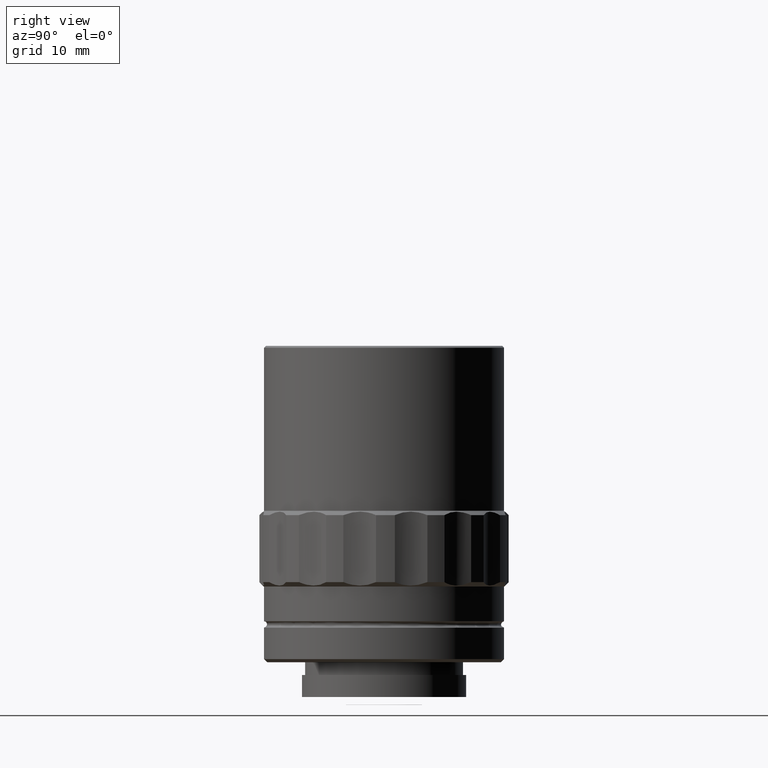
[diagram: clean part render]
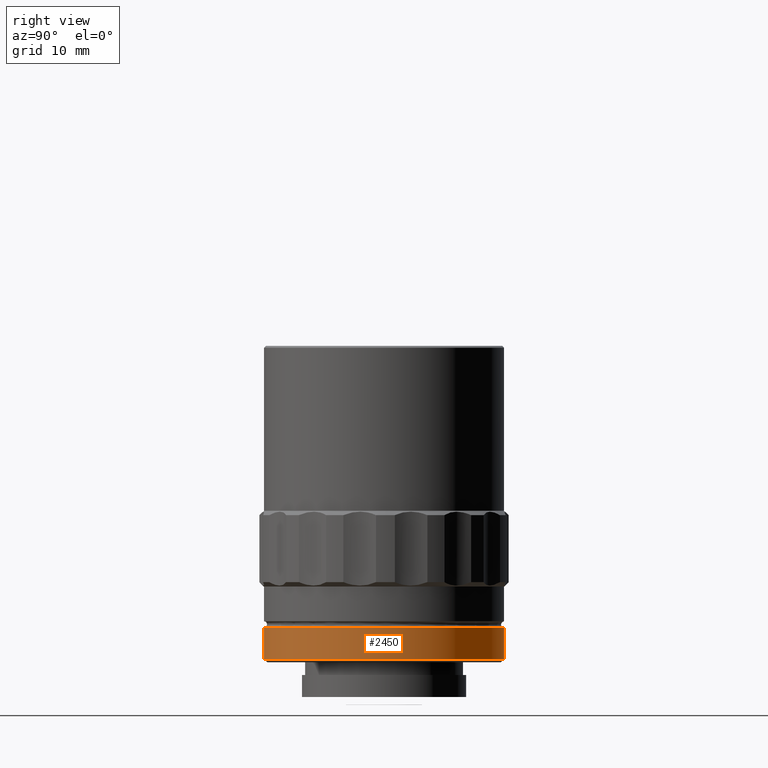
[diagram: same view with one face highlighted and labeled with its STEP entity id]
A machine part, right view. The second image highlights one B-rep face of the part: STEP entity #2450.
In plain terms, the highlighted cylindrical surface (bore or boss wall) has radius 19 mm, axis along (-0, -0, -1).
Its self-contained STEP definition (entity closure, byte-faithful):
#77 = EDGE_CURVE ( 'NONE', #3501, #3501, #1025, .T. ) ;
#170 = AXIS2_PLACEMENT_3D ( 'NONE', #2016, #3296, #960 ) ;
#182 = EDGE_LOOP ( 'NONE', ( #232 ) ) ;
#212 = DIRECTION ( 'NONE',  ( -1.734723475976809020E-18, -1.474514954580309450E-17, -1.000000000000000000 ) ) ;
#232 = ORIENTED_EDGE ( 'NONE', *, *, #3822, .F. ) ;
#960 = DIRECTION ( 'NONE',  ( 0.01109414005692111078, -0.9999384581344979983, 0.000000000000000000 ) ) ;
#967 = EDGE_LOOP ( 'NONE', ( #3476 ) ) ;
#1025 = CIRCLE ( 'NONE', #170, 19.00000000000002842 ) ;
#1185 = FACE_OUTER_BOUND ( 'NONE', #182, .T. ) ;
#1229 = CYLINDRICAL_SURFACE ( 'NONE', #4364, 19.00000000000002842 ) ;
#1508 = CARTESIAN_POINT ( 'NONE',  ( 0.2107886610815014883, -18.99883070455549117, 10.18999999999999417 ) ) ;
#1518 = CARTESIAN_POINT ( 'NONE',  ( 1.027753258338935420E-16, -1.746998480698644471E-15, 5.190000000000020819 ) ) ;
#1583 = DIRECTION ( 'NONE',  ( -0.01109414005692111078, 0.9999384581344979983, 0.000000000000000000 ) ) ;
#1636 = CARTESIAN_POINT ( 'NONE',  ( -0.2107886610815012940, 18.99883070455548761, 5.190000000000020819 ) ) ;
#1969 = VERTEX_POINT ( 'NONE', #1636 ) ;
#2016 = CARTESIAN_POINT ( 'NONE',  ( 1.114489432137775282E-16, -1.673272732969629183E-15, 10.18999999999999417 ) ) ;
#2231 = FACE_OUTER_BOUND ( 'NONE', #967, .T. ) ;
#2450 = ADVANCED_FACE ( 'NONE', ( #2231, #1185 ), #1229, .T. ) ;
#2514 = DIRECTION ( 'NONE',  ( -1.734723475976809020E-18, -1.474514954580309450E-17, -1.000000000000000000 ) ) ;
#3211 = CIRCLE ( 'NONE', #3980, 19.00000000000002842 ) ;
#3236 = CARTESIAN_POINT ( 'NONE',  ( 8.354839166315488270E-17, -1.910427421149925140E-15, -5.893572936552369690 ) ) ;
#3296 = DIRECTION ( 'NONE',  ( -1.734723475976809020E-18, -1.474514954580309450E-17, -1.000000000000000000 ) ) ;
#3476 = ORIENTED_EDGE ( 'NONE', *, *, #77, .T. ) ;
#3501 = VERTEX_POINT ( 'NONE', #1508 ) ;
#3822 = EDGE_CURVE ( 'NONE', #1969, #1969, #3211, .T. ) ;
#3850 = DIRECTION ( 'NONE',  ( 0.01109414005692111078, -0.9999384581344979983, 0.000000000000000000 ) ) ;
#3980 = AXIS2_PLACEMENT_3D ( 'NONE', #1518, #212, #1583 ) ;
#4364 = AXIS2_PLACEMENT_3D ( 'NONE', #3236, #2514, #3850 ) ;